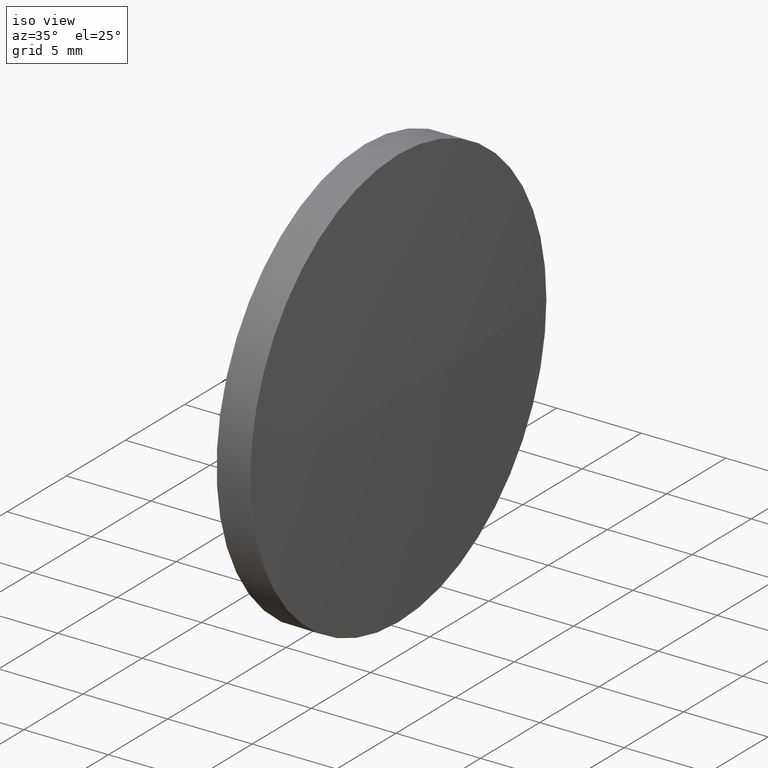
[diagram: clean part render]
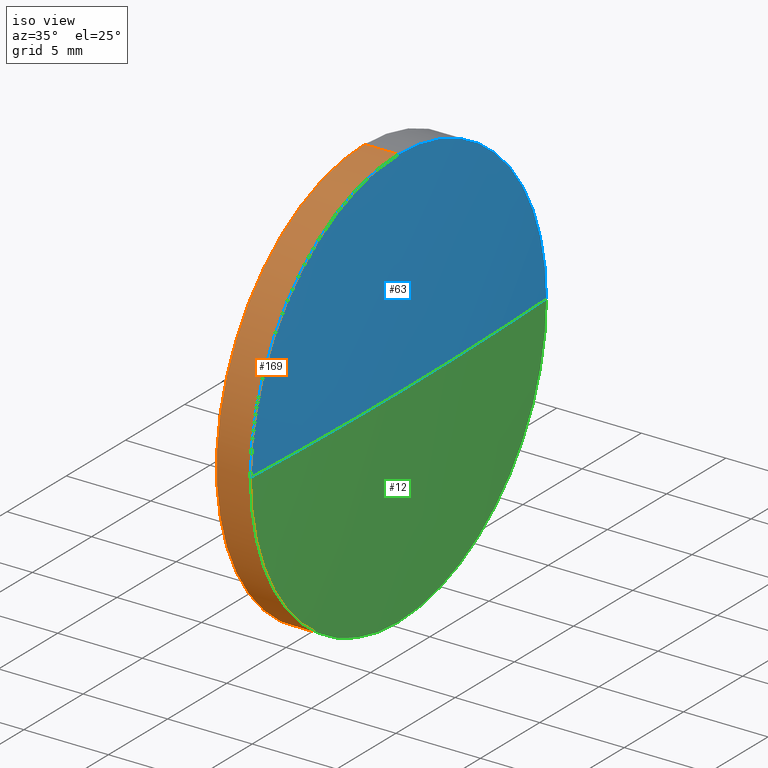
[diagram: same view with three faces highlighted in distinct colors, each labeled with its STEP entity id]
A machine part, iso view with three faces highlighted in distinct colors.
Their STEP definitions:

[orange] entity #169 — the highlighted cylindrical surface (partial cylindrical patch) has radius 12.5 mm, axis along (-1, -0, -0).
#3 = CARTESIAN_POINT ( 'NONE',  ( 433.4454962620779400, 164.5680277828015500, -12.50000000000001100 ) ) ;
#7 = EDGE_CURVE ( 'NONE', #125, #85, #184, .T. ) ;
#10 = LINE ( 'NONE', #155, #74 ) ;
#17 = CARTESIAN_POINT ( 'NONE',  ( 433.4454962620779400, 152.0680277828014400, 0.0000000000000000000 ) ) ;
#20 = DIRECTION ( 'NONE',  ( 0.0000000000000000000, 0.0000000000000000000, 1.000000000000000000 ) ) ;
#24 = CARTESIAN_POINT ( 'NONE',  ( 426.7034650201881000, 164.5680277828015500, 12.50000000000001100 ) ) ;
#27 = EDGE_CURVE ( 'NONE', #33, #174, #10, .T. ) ;
#31 = DIRECTION ( 'NONE',  ( 0.0000000000000000000, 0.0000000000000000000, 1.000000000000000000 ) ) ;
#33 = VERTEX_POINT ( 'NONE', #3 ) ;
#35 = CIRCLE ( 'NONE', #181, 12.50000000000001100 ) ;
#41 = DIRECTION ( 'NONE',  ( 0.0000000000000000000, 0.0000000000000000000, 1.000000000000000000 ) ) ;
#43 = CARTESIAN_POINT ( 'NONE',  ( 433.4454962620779400, 164.5680277828015500, 12.50000000000001100 ) ) ;
#47 = DIRECTION ( 'NONE',  ( -1.000000000000000000, -0.0000000000000000000, -0.0000000000000000000 ) ) ;
#53 = CARTESIAN_POINT ( 'NONE',  ( 433.4454962620779400, 164.5680277828015500, 0.0000000000000000000 ) ) ;
#54 = EDGE_CURVE ( 'NONE', #174, #85, #141, .T. ) ;
#60 = EDGE_CURVE ( 'NONE', #156, #125, #90, .T. ) ;
#65 = DIRECTION ( 'NONE',  ( -1.000000000000000000, -0.0000000000000000000, -0.0000000000000000000 ) ) ;
#70 = CYLINDRICAL_SURFACE ( 'NONE', #83, 12.50000000000001100 ) ;
#71 = AXIS2_PLACEMENT_3D ( 'NONE', #108, #139, #31 ) ;
#74 = VECTOR ( 'NONE', #65, 1000.000000000000000 ) ;
#83 = AXIS2_PLACEMENT_3D ( 'NONE', #159, #171, #88 ) ;
#85 = VERTEX_POINT ( 'NONE', #176 ) ;
#88 = DIRECTION ( 'NONE',  ( 0.0000000000000000000, 0.0000000000000000000, 1.000000000000000000 ) ) ;
#90 = CIRCLE ( 'NONE', #177, 12.50000000000001100 ) ;
#92 = DIRECTION ( 'NONE',  ( -1.000000000000000000, -0.0000000000000000000, -0.0000000000000000000 ) ) ;
#95 = CARTESIAN_POINT ( 'NONE',  ( 433.4454962620779400, 164.5680277828015500, 0.0000000000000000000 ) ) ;
#98 = CARTESIAN_POINT ( 'NONE',  ( 431.4454962620779400, 164.5680277828015500, -12.50000000000001100 ) ) ;
#102 = EDGE_LOOP ( 'NONE', ( #119, #112, #109, #115, #131 ) ) ;
#108 = CARTESIAN_POINT ( 'NONE',  ( 431.4454962620779400, 164.5680277828015500, 0.0000000000000000000 ) ) ;
#109 = ORIENTED_EDGE ( 'NONE', *, *, #60, .T. ) ;
#112 = ORIENTED_EDGE ( 'NONE', *, *, #182, .T. ) ;
#115 = ORIENTED_EDGE ( 'NONE', *, *, #7, .T. ) ;
#119 = ORIENTED_EDGE ( 'NONE', *, *, #27, .F. ) ;
#125 = VERTEX_POINT ( 'NONE', #43 ) ;
#131 = ORIENTED_EDGE ( 'NONE', *, *, #54, .F. ) ;
#135 = VECTOR ( 'NONE', #166, 1000.000000000000000 ) ;
#139 = DIRECTION ( 'NONE',  ( -1.000000000000000000, -0.0000000000000000000, -0.0000000000000000000 ) ) ;
#141 = CIRCLE ( 'NONE', #71, 12.50000000000001100 ) ;
#148 = FACE_OUTER_BOUND ( 'NONE', #102, .T. ) ;
#155 = CARTESIAN_POINT ( 'NONE',  ( 426.7034650201881000, 164.5680277828015500, -12.50000000000001100 ) ) ;
#156 = VERTEX_POINT ( 'NONE', #17 ) ;
#159 = CARTESIAN_POINT ( 'NONE',  ( 426.7034650201881000, 164.5680277828015500, 0.0000000000000000000 ) ) ;
#166 = DIRECTION ( 'NONE',  ( -1.000000000000000000, -0.0000000000000000000, -0.0000000000000000000 ) ) ;
#169 = ADVANCED_FACE ( 'NONE', ( #148 ), #70, .T. ) ;
#171 = DIRECTION ( 'NONE',  ( -1.000000000000000000, -0.0000000000000000000, -0.0000000000000000000 ) ) ;
#174 = VERTEX_POINT ( 'NONE', #98 ) ;
#176 = CARTESIAN_POINT ( 'NONE',  ( 431.4454962620779400, 164.5680277828015500, 12.50000000000001100 ) ) ;
#177 = AXIS2_PLACEMENT_3D ( 'NONE', #95, #92, #41 ) ;
#181 = AXIS2_PLACEMENT_3D ( 'NONE', #53, #47, #20 ) ;
#182 = EDGE_CURVE ( 'NONE', #33, #156, #35, .T. ) ;
#184 = LINE ( 'NONE', #24, #135 ) ;

[blue] entity #63 — the highlighted spherical surface has radius 260.567 mm.
#1 = ORIENTED_EDGE ( 'NONE', *, *, #39, .F. ) ;
#4 = VERTEX_POINT ( 'NONE', #118 ) ;
#13 = DIRECTION ( 'NONE',  ( 0.0000000000000000000, 0.0000000000000000000, 1.000000000000000000 ) ) ;
#16 = ORIENTED_EDGE ( 'NONE', *, *, #30, .T. ) ;
#17 = CARTESIAN_POINT ( 'NONE',  ( 433.4454962620779400, 152.0680277828014400, 0.0000000000000000000 ) ) ;
#23 = AXIS2_PLACEMENT_3D ( 'NONE', #40, #75, #86 ) ;
#25 = EDGE_CURVE ( 'NONE', #130, #156, #58, .T. ) ;
#30 = EDGE_CURVE ( 'NONE', #130, #4, #105, .T. ) ;
#34 = AXIS2_PLACEMENT_3D ( 'NONE', #120, #170, #38 ) ;
#37 = FACE_OUTER_BOUND ( 'NONE', #137, .T. ) ;
#38 = DIRECTION ( 'NONE',  ( 0.0000000000000000000, -1.000000000000000000, -1.224646799147353200E-016 ) ) ;
#39 = EDGE_CURVE ( 'NONE', #125, #4, #153, .T. ) ;
#40 = CARTESIAN_POINT ( 'NONE',  ( 173.1788295954056000, 164.5680277828017800, 0.0000000000000000000 ) ) ;
#41 = DIRECTION ( 'NONE',  ( 0.0000000000000000000, 0.0000000000000000000, 1.000000000000000000 ) ) ;
#43 = CARTESIAN_POINT ( 'NONE',  ( 433.4454962620779400, 164.5680277828015500, 12.50000000000001100 ) ) ;
#48 = SPHERICAL_SURFACE ( 'NONE', #116, 260.5666666666724000 ) ;
#49 = AXIS2_PLACEMENT_3D ( 'NONE', #73, #107, #64 ) ;
#58 = CIRCLE ( 'NONE', #23, 260.5666666666724000 ) ;
#59 = ORIENTED_EDGE ( 'NONE', *, *, #60, .F. ) ;
#60 = EDGE_CURVE ( 'NONE', #156, #125, #90, .T. ) ;
#63 = ADVANCED_FACE ( 'NONE', ( #37 ), #48, .T. ) ;
#64 = DIRECTION ( 'NONE',  ( 0.0000000000000000000, 0.0000000000000000000, 1.000000000000000000 ) ) ;
#73 = CARTESIAN_POINT ( 'NONE',  ( 433.4454962620779400, 164.5680277828015500, 0.0000000000000000000 ) ) ;
#75 = DIRECTION ( 'NONE',  ( 0.0000000000000000000, 0.0000000000000000000, -1.000000000000000000 ) ) ;
#77 = CARTESIAN_POINT ( 'NONE',  ( 173.1788295954056000, 164.5680277828017800, 0.0000000000000000000 ) ) ;
#86 = DIRECTION ( 'NONE',  ( -1.000000000000000000, 0.0000000000000000000, 0.0000000000000000000 ) ) ;
#90 = CIRCLE ( 'NONE', #177, 12.50000000000001100 ) ;
#91 = ORIENTED_EDGE ( 'NONE', *, *, #25, .F. ) ;
#92 = DIRECTION ( 'NONE',  ( -1.000000000000000000, -0.0000000000000000000, -0.0000000000000000000 ) ) ;
#95 = CARTESIAN_POINT ( 'NONE',  ( 433.4454962620779400, 164.5680277828015500, 0.0000000000000000000 ) ) ;
#105 = CIRCLE ( 'NONE', #34, 260.5666666666724000 ) ;
#107 = DIRECTION ( 'NONE',  ( -1.000000000000000000, -0.0000000000000000000, -0.0000000000000000000 ) ) ;
#116 = AXIS2_PLACEMENT_3D ( 'NONE', #77, #13, #124 ) ;
#118 = CARTESIAN_POINT ( 'NONE',  ( 433.4454962620779400, 177.0680277828018900, 1.530808498934205900E-015 ) ) ;
#120 = CARTESIAN_POINT ( 'NONE',  ( 173.1788295954056000, 164.5680277828017800, 0.0000000000000000000 ) ) ;
#121 = CARTESIAN_POINT ( 'NONE',  ( 433.7454962620780100, 164.5680277828017500, 0.0000000000000000000 ) ) ;
#124 = DIRECTION ( 'NONE',  ( 0.0000000000000000000, -1.000000000000000000, 0.0000000000000000000 ) ) ;
#125 = VERTEX_POINT ( 'NONE', #43 ) ;
#130 = VERTEX_POINT ( 'NONE', #121 ) ;
#137 = EDGE_LOOP ( 'NONE', ( #91, #16, #1, #59 ) ) ;
#153 = CIRCLE ( 'NONE', #49, 12.50000000000001100 ) ;
#156 = VERTEX_POINT ( 'NONE', #17 ) ;
#170 = DIRECTION ( 'NONE',  ( 0.0000000000000000000, -1.224646799147353200E-016, 1.000000000000000000 ) ) ;
#177 = AXIS2_PLACEMENT_3D ( 'NONE', #95, #92, #41 ) ;

[green] entity #12 — the highlighted spherical surface has radius 260.567 mm.
#3 = CARTESIAN_POINT ( 'NONE',  ( 433.4454962620779400, 164.5680277828015500, -12.50000000000001100 ) ) ;
#4 = VERTEX_POINT ( 'NONE', #118 ) ;
#12 = ADVANCED_FACE ( 'NONE', ( #36 ), #29, .T. ) ;
#17 = CARTESIAN_POINT ( 'NONE',  ( 433.4454962620779400, 152.0680277828014400, 0.0000000000000000000 ) ) ;
#20 = DIRECTION ( 'NONE',  ( 0.0000000000000000000, 0.0000000000000000000, 1.000000000000000000 ) ) ;
#23 = AXIS2_PLACEMENT_3D ( 'NONE', #40, #75, #86 ) ;
#25 = EDGE_CURVE ( 'NONE', #130, #156, #58, .T. ) ;
#28 = CIRCLE ( 'NONE', #167, 12.50000000000001100 ) ;
#29 = SPHERICAL_SURFACE ( 'NONE', #104, 260.5666666666724000 ) ;
#30 = EDGE_CURVE ( 'NONE', #130, #4, #105, .T. ) ;
#32 = EDGE_LOOP ( 'NONE', ( #79, #168, #100, #183 ) ) ;
#33 = VERTEX_POINT ( 'NONE', #3 ) ;
#34 = AXIS2_PLACEMENT_3D ( 'NONE', #120, #170, #38 ) ;
#35 = CIRCLE ( 'NONE', #181, 12.50000000000001100 ) ;
#36 = FACE_OUTER_BOUND ( 'NONE', #32, .T. ) ;
#38 = DIRECTION ( 'NONE',  ( 0.0000000000000000000, -1.000000000000000000, -1.224646799147353200E-016 ) ) ;
#40 = CARTESIAN_POINT ( 'NONE',  ( 173.1788295954056000, 164.5680277828017800, 0.0000000000000000000 ) ) ;
#47 = DIRECTION ( 'NONE',  ( -1.000000000000000000, -0.0000000000000000000, -0.0000000000000000000 ) ) ;
#53 = CARTESIAN_POINT ( 'NONE',  ( 433.4454962620779400, 164.5680277828015500, 0.0000000000000000000 ) ) ;
#58 = CIRCLE ( 'NONE', #23, 260.5666666666724000 ) ;
#75 = DIRECTION ( 'NONE',  ( 0.0000000000000000000, 0.0000000000000000000, -1.000000000000000000 ) ) ;
#79 = ORIENTED_EDGE ( 'NONE', *, *, #30, .F. ) ;
#81 = DIRECTION ( 'NONE',  ( -1.000000000000000000, -0.0000000000000000000, -0.0000000000000000000 ) ) ;
#86 = DIRECTION ( 'NONE',  ( -1.000000000000000000, 0.0000000000000000000, 0.0000000000000000000 ) ) ;
#100 = ORIENTED_EDGE ( 'NONE', *, *, #182, .F. ) ;
#104 = AXIS2_PLACEMENT_3D ( 'NONE', #134, #151, #186 ) ;
#105 = CIRCLE ( 'NONE', #34, 260.5666666666724000 ) ;
#118 = CARTESIAN_POINT ( 'NONE',  ( 433.4454962620779400, 177.0680277828018900, 1.530808498934205900E-015 ) ) ;
#120 = CARTESIAN_POINT ( 'NONE',  ( 173.1788295954056000, 164.5680277828017800, 0.0000000000000000000 ) ) ;
#121 = CARTESIAN_POINT ( 'NONE',  ( 433.7454962620780100, 164.5680277828017500, 0.0000000000000000000 ) ) ;
#130 = VERTEX_POINT ( 'NONE', #121 ) ;
#134 = CARTESIAN_POINT ( 'NONE',  ( 173.1788295954056000, 164.5680277828017800, 0.0000000000000000000 ) ) ;
#140 = DIRECTION ( 'NONE',  ( 0.0000000000000000000, 0.0000000000000000000, 1.000000000000000000 ) ) ;
#142 = EDGE_CURVE ( 'NONE', #4, #33, #28, .T. ) ;
#151 = DIRECTION ( 'NONE',  ( 0.0000000000000000000, 0.0000000000000000000, 1.000000000000000000 ) ) ;
#156 = VERTEX_POINT ( 'NONE', #17 ) ;
#167 = AXIS2_PLACEMENT_3D ( 'NONE', #178, #81, #140 ) ;
#168 = ORIENTED_EDGE ( 'NONE', *, *, #25, .T. ) ;
#170 = DIRECTION ( 'NONE',  ( 0.0000000000000000000, -1.224646799147353200E-016, 1.000000000000000000 ) ) ;
#178 = CARTESIAN_POINT ( 'NONE',  ( 433.4454962620779400, 164.5680277828015500, 0.0000000000000000000 ) ) ;
#181 = AXIS2_PLACEMENT_3D ( 'NONE', #53, #47, #20 ) ;
#182 = EDGE_CURVE ( 'NONE', #33, #156, #35, .T. ) ;
#183 = ORIENTED_EDGE ( 'NONE', *, *, #142, .F. ) ;
#186 = DIRECTION ( 'NONE',  ( 0.0000000000000000000, -1.000000000000000000, 0.0000000000000000000 ) ) ;